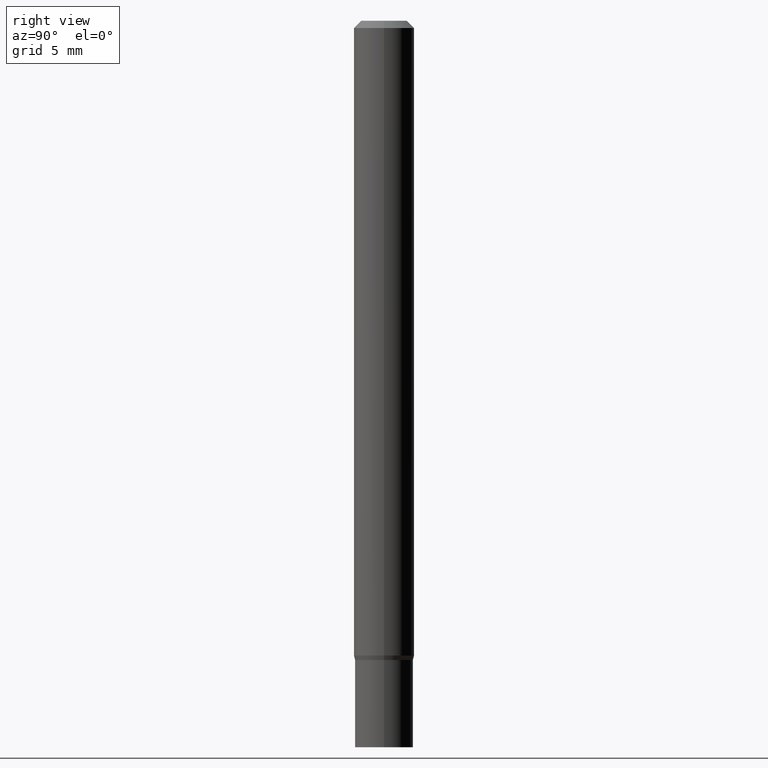
[diagram: clean part render]
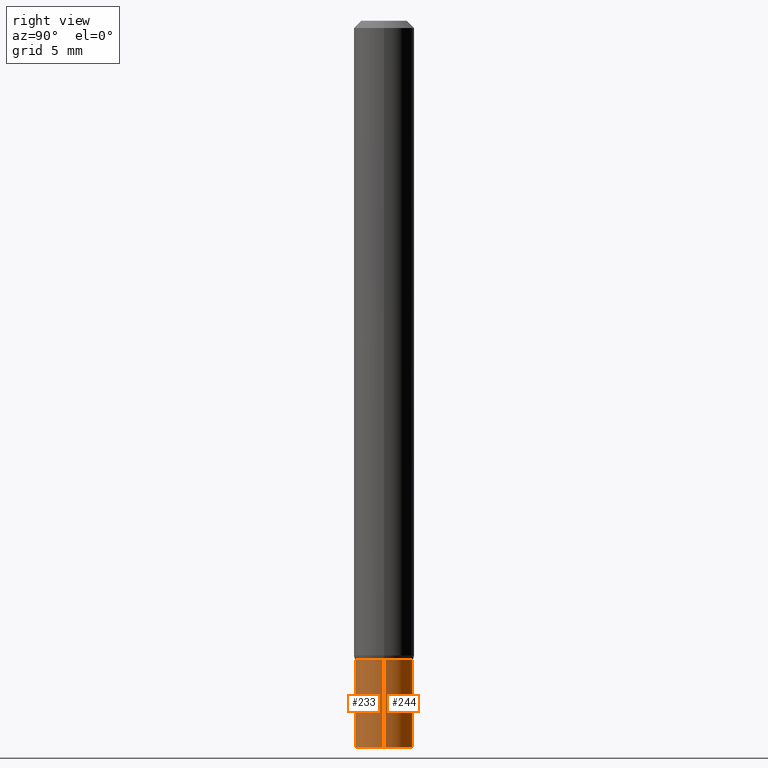
[diagram: same view with one multi-face feature highlighted, each face labeled with its STEP entity id]
A machine part, right view. The highlighted faces form ONE feature: a constant-radius fillet chain: 2 tangent blend faces with common blend radius 1.524 mm. The faces share edges in the B-rep.
Their STEP definitions:
[1] entity #244 (Cylinder):
#1 = CARTESIAN_POINT ( 'NONE',  ( 0.05999999999999999778, -4.189777606611760421E-16, 2.925706065477561756E-30 ) ) ;
#9 = DIRECTION ( 'NONE',  ( 1.000000000000000000, -6.982962677686268288E-15, 0.000000000000000000 ) ) ;
#17 = CARTESIAN_POINT ( 'NONE',  ( 0.05999999999999999778, -5.656199768925894810E-15, -1.500000000000000222 ) ) ;
#27 = EDGE_CURVE ( 'NONE', #217, #466, #271, .T. ) ;
#34 = CARTESIAN_POINT ( 'NONE',  ( 0.000000000000000000, 0.000000000000000000, 0.000000000000000000 ) ) ;
#42 = CARTESIAN_POINT ( 'NONE',  ( -0.05999999999999999778, 4.263256414560600957E-16, -2.951361054152943413E-30 ) ) ;
#57 = ORIENTED_EDGE ( 'NONE', *, *, #343, .F. ) ;
#65 = CARTESIAN_POINT ( 'NONE',  ( 3.228018824164380442E-29, -4.608755367272952437E-15, -1.320000000000000062 ) ) ;
#66 = DIRECTION ( 'NONE',  ( -2.445468806185136597E-29, 3.491481338843145583E-15, 1.000000000000000000 ) ) ;
#99 = CYLINDRICAL_SURFACE ( 'NONE', #254, 0.05999999999999999778 ) ;
#110 = DIRECTION ( 'NONE',  ( -2.445468806185136597E-29, 3.491481338843145583E-15, 1.000000000000000000 ) ) ;
#124 = FACE_OUTER_BOUND ( 'NONE', #269, .T. ) ;
#130 = VERTEX_POINT ( 'NONE', #444 ) ;
#187 = LINE ( 'NONE', #1, #316 ) ;
#196 = VERTEX_POINT ( 'NONE', #450 ) ;
#212 = DIRECTION ( 'NONE',  ( 1.000000000000000000, -6.982962677686268288E-15, 0.000000000000000000 ) ) ;
#215 = AXIS2_PLACEMENT_3D ( 'NONE', #372, #110, #9 ) ;
#217 = VERTEX_POINT ( 'NONE', #17 ) ;
#244 = ADVANCED_FACE ( 'NONE', ( #124 ), #99, .T. ) ;
#254 = AXIS2_PLACEMENT_3D ( 'NONE', #34, #358, #325 ) ;
#260 = ORIENTED_EDGE ( 'NONE', *, *, #449, .F. ) ;
#269 = EDGE_LOOP ( 'NONE', ( #432, #318, #57, #260 ) ) ;
#271 = CIRCLE ( 'NONE', #215, 0.05999999999999999778 ) ;
#304 = CIRCLE ( 'NONE', #457, 0.05999999999999999778 ) ;
#309 = VECTOR ( 'NONE', #360, 39.37007874015748143 ) ;
#316 = VECTOR ( 'NONE', #404, 39.37007874015748143 ) ;
#318 = ORIENTED_EDGE ( 'NONE', *, *, #412, .T. ) ;
#325 = DIRECTION ( 'NONE',  ( 1.000000000000000000, -6.982962677686267499E-15, 4.876176775795936353E-29 ) ) ;
#343 = EDGE_CURVE ( 'NONE', #196, #130, #304, .T. ) ;
#358 = DIRECTION ( 'NONE',  ( -2.445468806185136597E-29, 3.491481338843145583E-15, 1.000000000000000000 ) ) ;
#360 = DIRECTION ( 'NONE',  ( -2.445468806185136877E-29, 3.491481338843145188E-15, 1.000000000000000000 ) ) ;
#368 = LINE ( 'NONE', #42, #309 ) ;
#371 = CARTESIAN_POINT ( 'NONE',  ( -0.05999999999999999778, -4.496663046312775211E-15, -1.500000000000000222 ) ) ;
#372 = CARTESIAN_POINT ( 'NONE',  ( 3.668203209277704895E-29, -5.237222008264718177E-15, -1.500000000000000222 ) ) ;
#404 = DIRECTION ( 'NONE',  ( -2.445468806185136877E-29, 3.491481338843145188E-15, 1.000000000000000000 ) ) ;
#412 = EDGE_CURVE ( 'NONE', #466, #130, #368, .T. ) ;
#432 = ORIENTED_EDGE ( 'NONE', *, *, #27, .T. ) ;
#444 = CARTESIAN_POINT ( 'NONE',  ( -0.05999999999999999778, -4.496663046312775211E-15, -1.320000000000000062 ) ) ;
#449 = EDGE_CURVE ( 'NONE', #217, #196, #187, .T. ) ;
#450 = CARTESIAN_POINT ( 'NONE',  ( 0.05999999999999999778, -5.027733127934128282E-15, -1.320000000000000062 ) ) ;
#457 = AXIS2_PLACEMENT_3D ( 'NONE', #65, #66, #212 ) ;
#466 = VERTEX_POINT ( 'NONE', #371 ) ;
[2] entity #233 (Cylinder):
#1 = CARTESIAN_POINT ( 'NONE',  ( 0.05999999999999999778, -4.189777606611760421E-16, 2.925706065477561756E-30 ) ) ;
#17 = CARTESIAN_POINT ( 'NONE',  ( 0.05999999999999999778, -5.656199768925894810E-15, -1.500000000000000222 ) ) ;
#22 = DIRECTION ( 'NONE',  ( 1.000000000000000000, -6.982962677686268288E-15, 0.000000000000000000 ) ) ;
#33 = ORIENTED_EDGE ( 'NONE', *, *, #139, .T. ) ;
#42 = CARTESIAN_POINT ( 'NONE',  ( -0.05999999999999999778, 4.263256414560600957E-16, -2.951361054152943413E-30 ) ) ;
#53 = DIRECTION ( 'NONE',  ( -2.445468806185136597E-29, 3.491481338843145583E-15, 1.000000000000000000 ) ) ;
#81 = ORIENTED_EDGE ( 'NONE', *, *, #412, .F. ) ;
#92 = CYLINDRICAL_SURFACE ( 'NONE', #145, 0.05999999999999999778 ) ;
#108 = EDGE_CURVE ( 'NONE', #130, #196, #163, .T. ) ;
#130 = VERTEX_POINT ( 'NONE', #444 ) ;
#139 = EDGE_CURVE ( 'NONE', #466, #217, #433, .T. ) ;
#145 = AXIS2_PLACEMENT_3D ( 'NONE', #237, #311, #448 ) ;
#163 = CIRCLE ( 'NONE', #221, 0.05999999999999999778 ) ;
#169 = ORIENTED_EDGE ( 'NONE', *, *, #108, .F. ) ;
#187 = LINE ( 'NONE', #1, #316 ) ;
#196 = VERTEX_POINT ( 'NONE', #450 ) ;
#217 = VERTEX_POINT ( 'NONE', #17 ) ;
#221 = AXIS2_PLACEMENT_3D ( 'NONE', #456, #374, #342 ) ;
#233 = ADVANCED_FACE ( 'NONE', ( #413 ), #92, .T. ) ;
#237 = CARTESIAN_POINT ( 'NONE',  ( 0.000000000000000000, 0.000000000000000000, 0.000000000000000000 ) ) ;
#246 = AXIS2_PLACEMENT_3D ( 'NONE', #453, #53, #22 ) ;
#305 = EDGE_LOOP ( 'NONE', ( #81, #33, #385, #169 ) ) ;
#309 = VECTOR ( 'NONE', #360, 39.37007874015748143 ) ;
#311 = DIRECTION ( 'NONE',  ( -2.445468806185136597E-29, 3.491481338843145583E-15, 1.000000000000000000 ) ) ;
#316 = VECTOR ( 'NONE', #404, 39.37007874015748143 ) ;
#342 = DIRECTION ( 'NONE',  ( 1.000000000000000000, -6.982962677686268288E-15, 0.000000000000000000 ) ) ;
#360 = DIRECTION ( 'NONE',  ( -2.445468806185136877E-29, 3.491481338843145188E-15, 1.000000000000000000 ) ) ;
#368 = LINE ( 'NONE', #42, #309 ) ;
#371 = CARTESIAN_POINT ( 'NONE',  ( -0.05999999999999999778, -4.496663046312775211E-15, -1.500000000000000222 ) ) ;
#374 = DIRECTION ( 'NONE',  ( -2.445468806185136597E-29, 3.491481338843145583E-15, 1.000000000000000000 ) ) ;
#385 = ORIENTED_EDGE ( 'NONE', *, *, #449, .T. ) ;
#404 = DIRECTION ( 'NONE',  ( -2.445468806185136877E-29, 3.491481338843145188E-15, 1.000000000000000000 ) ) ;
#412 = EDGE_CURVE ( 'NONE', #466, #130, #368, .T. ) ;
#413 = FACE_OUTER_BOUND ( 'NONE', #305, .T. ) ;
#433 = CIRCLE ( 'NONE', #246, 0.05999999999999999778 ) ;
#444 = CARTESIAN_POINT ( 'NONE',  ( -0.05999999999999999778, -4.496663046312775211E-15, -1.320000000000000062 ) ) ;
#448 = DIRECTION ( 'NONE',  ( 1.000000000000000000, -6.982962677686267499E-15, 4.876176775795936353E-29 ) ) ;
#449 = EDGE_CURVE ( 'NONE', #217, #196, #187, .T. ) ;
#450 = CARTESIAN_POINT ( 'NONE',  ( 0.05999999999999999778, -5.027733127934128282E-15, -1.320000000000000062 ) ) ;
#453 = CARTESIAN_POINT ( 'NONE',  ( 3.668203209277704895E-29, -5.237222008264718177E-15, -1.500000000000000222 ) ) ;
#456 = CARTESIAN_POINT ( 'NONE',  ( 3.228018824164380442E-29, -4.608755367272952437E-15, -1.320000000000000062 ) ) ;
#466 = VERTEX_POINT ( 'NONE', #371 ) ;